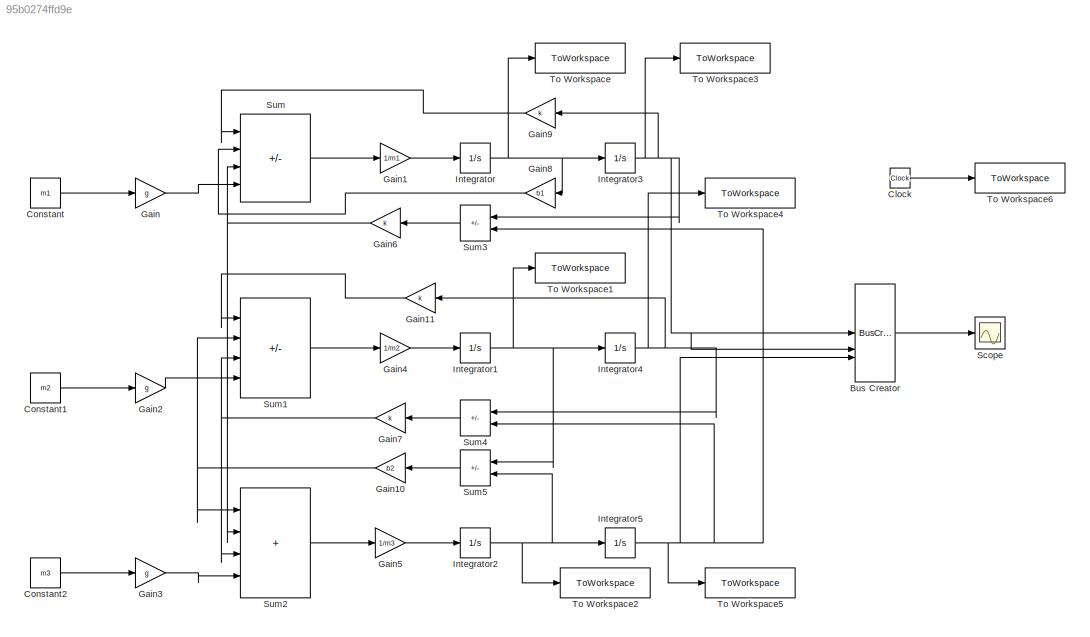
MODEL slx_95b0274ffd9e
KIND model
CONFIG AbsTol = auto
CONFIG EnableMultiTasking = off
CONFIG FixedStep = auto
CONFIG MaxStep = auto
CONFIG MinStep = auto
CONFIG RelTol = 1e-3
CONFIG SampleTimeConstraint = Unconstrained
CONFIG SolverName = VariableStepAuto
CONFIG StartTime = 0.0
CONFIG StopTime = 10.0
BLOCK [BusCreator] Bus Creator
  DisplayOption = bar
  InheritFromInputs = on
  Inputs = 3
BLOCK [Clock] Clock
BLOCK [Constant] Constant
  Value = m1
BLOCK [Constant] Constant1
  Value = m2
BLOCK [Constant] Constant2
  Value = m3
BLOCK [Gain] Gain
  Gain = g
BLOCK [Gain] Gain1
  Gain = 1/m1
BLOCK [Gain] Gain10
  Gain = b2
BLOCK [Gain] Gain11
  Gain = k
BLOCK [Gain] Gain2
  Gain = g
BLOCK [Gain] Gain3
  Gain = g
BLOCK [Gain] Gain4
  Gain = 1/m2
BLOCK [Gain] Gain5
  Gain = 1/m3
BLOCK [Gain] Gain6
  Gain = k
BLOCK [Gain] Gain7
  Gain = k
BLOCK [Gain] Gain8
  Gain = b1
BLOCK [Gain] Gain9
  Gain = k
BLOCK [Integrator] Integrator
BLOCK [Integrator] Integrator1
BLOCK [Integrator] Integrator2
BLOCK [Integrator] Integrator3
BLOCK [Integrator] Integrator4
BLOCK [Integrator] Integrator5
BLOCK [Scope] Scope
  Floating = off
  NumInputPorts = 1
  ScopeSpecificationString = Simulink.scopes.TimeScopeBlockCfg('CurrentConfiguration', extmgr.ConfigurationSet(extmgr.Configuration('Core','General UI',true),extmgr.Configuration('Core','Source UI',true),extmgr.Configuration('Sources','WiredSimulink',true),extmgr.Configuration('Visuals','Time Domain',true,'SerializedDisplays',{struct('MinYLimReal','-3.20662','MaxYLimReal','28.85954','YLabelReal','','MinYLimMag','0.00000','Max...<+1396ch>
BLOCK [Sum] Sum
  IconShape = rectangular
  Inputs = |---+
BLOCK [Sum] Sum1
  IconShape = rectangular
  Inputs = |---+
BLOCK [Sum] Sum2
  IconShape = rectangular
  Inputs = |++++
BLOCK [Sum] Sum3
  IconShape = rectangular
  Inputs = |+-
BLOCK [Sum] Sum4
  IconShape = rectangular
  Inputs = |+-
BLOCK [Sum] Sum5
  IconShape = rectangular
  Inputs = |+-
BLOCK [ToWorkspace] To Workspace
  FixptAsFi = on
  MaxDataPoints = inf
  SampleTime = -1
  SaveFormat = Timeseries
  VariableName = v1
BLOCK [ToWorkspace] To Workspace1
  FixptAsFi = on
  MaxDataPoints = inf
  SampleTime = -1
  SaveFormat = Timeseries
  VariableName = v2
BLOCK [ToWorkspace] To Workspace2
  FixptAsFi = on
  MaxDataPoints = inf
  SampleTime = -1
  SaveFormat = Timeseries
  VariableName = v3
BLOCK [ToWorkspace] To Workspace3
  FixptAsFi = on
  MaxDataPoints = inf
  SampleTime = -1
  SaveFormat = Timeseries
  VariableName = x1
BLOCK [ToWorkspace] To Workspace4
  FixptAsFi = on
  MaxDataPoints = inf
  SampleTime = -1
  SaveFormat = Timeseries
  VariableName = x2
BLOCK [ToWorkspace] To Workspace5
  FixptAsFi = on
  MaxDataPoints = inf
  SampleTime = -1
  SaveFormat = Timeseries
  VariableName = x3
BLOCK [ToWorkspace] To Workspace6
  FixptAsFi = on
  MaxDataPoints = inf
  SampleTime = -1
  SaveFormat = Timeseries
  VariableName = t
LINE Bus Creator:1 -> Scope:1
LINE Clock:1 -> To Workspace6:1
LINE Constant1:1 -> Gain2:1
LINE Constant2:1 -> Gain3:1
LINE Constant:1 -> Gain:1
NET Gain10:1 -> Sum1:2, Sum2:1
LINE Gain11:1 -> Sum1:1
LINE Gain1:1 -> Integrator:1
LINE Gain2:1 -> Sum1:4
LINE Gain3:1 -> Sum2:4
LINE Gain4:1 -> Integrator1:1
LINE Gain5:1 -> Integrator2:1
NET Gain6:1 -> Sum2:2, Sum:3
NET Gain7:1 -> Sum1:3, Sum2:3
LINE Gain8:1 -> Sum:2
LINE Gain9:1 -> Sum:1
LINE Gain:1 -> Sum:4
NET Integrator1:1 -> Integrator4:1, Sum5:1, To Workspace1:1
NET Integrator2:1 -> Integrator5:1, Sum5:2, To Workspace2:1
NET Integrator3:1 -> Bus Creator:1, Gain9:1, Sum3:1, To Workspace3:1
NET Integrator4:1 -> Bus Creator:2, Gain11:1, Sum4:1, To Workspace4:1
NET Integrator5:1 -> Bus Creator:3, Sum3:2, Sum4:2, To Workspace5:1
NET Integrator:1 -> Gain8:1, Integrator3:1, To Workspace:1
LINE Sum1:1 -> Gain4:1
LINE Sum2:1 -> Gain5:1
LINE Sum3:1 -> Gain6:1
LINE Sum4:1 -> Gain7:1
LINE Sum5:1 -> Gain10:1
LINE Sum:1 -> Gain1:1
note: NET lines group one-source signal fan-out (src -> all destinations, sorted); 1:1 wires keep LINE
